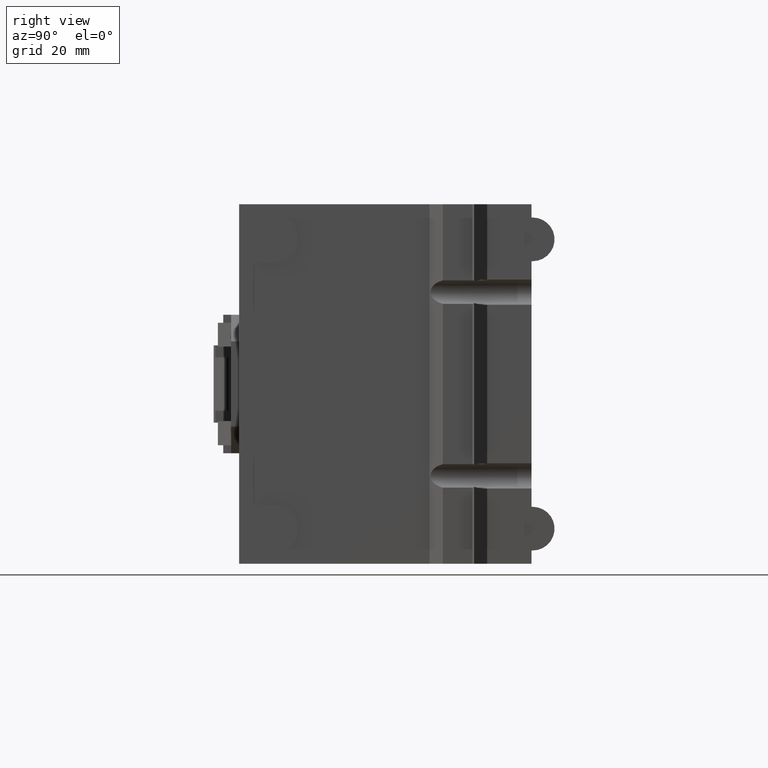
[diagram: clean part render]
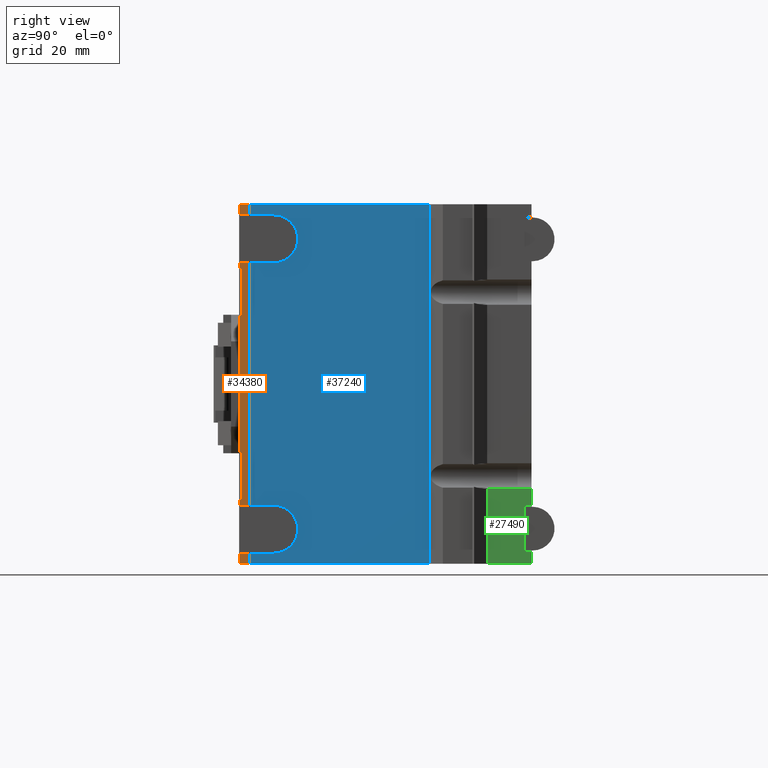
[diagram: same view with three faces highlighted in distinct colors, each labeled with its STEP entity id]
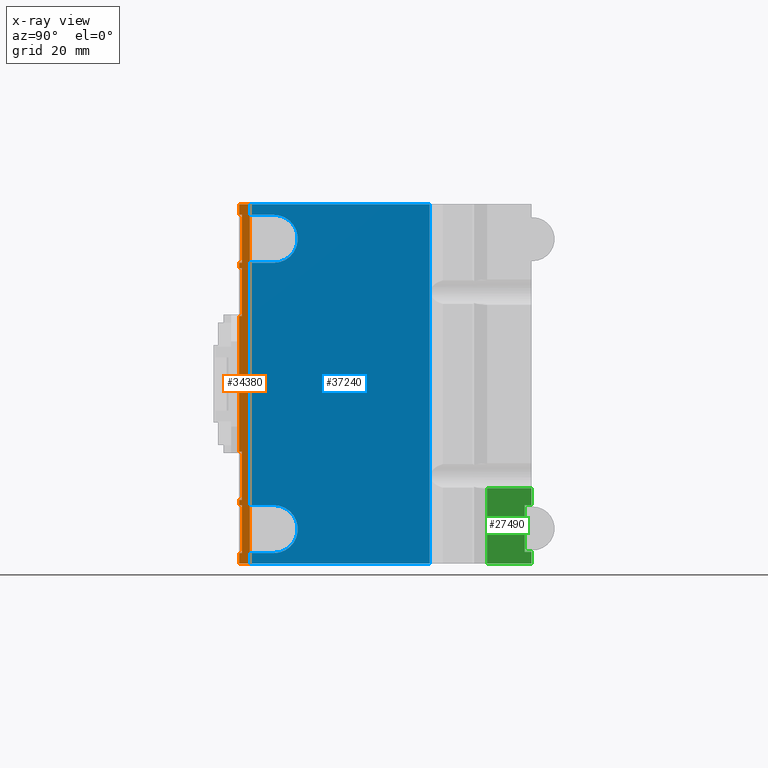
[diagram: x-ray of the same camera — body ghosted, the three highlighted faces saturated]
A machine part, right view with three faces highlighted in distinct colors.
The next image is the same camera in x-ray (body ghosted, the three faces saturated) — at least one of them is partly hidden behind the body in this view.
Their STEP definitions:

[orange] entity #34380 — the highlighted planar face has unit normal (1, 0, 0).
#12280=CARTESIAN_POINT('',(-42.5,0.,-152.));
#12290=DIRECTION('',(0.,1.,0.));
#12300=VECTOR('',#12290,1.);
#12310=LINE('',#12280,#12300);
#12320=CARTESIAN_POINT('',(-42.5,-1.,-152.));
#12330=VERTEX_POINT('',#12320);
#12340=CARTESIAN_POINT('',(-42.5,3.,-152.));
#12350=VERTEX_POINT('',#12340);
#12360=EDGE_CURVE('',#12330,#12350,#12310,.T.);
#21310=CARTESIAN_POINT('',(92.5,3.,-152.));
#21320=VERTEX_POINT('',#21310);
#21350=CARTESIAN_POINT('',(92.5,0.,-152.));
#21360=DIRECTION('',(0.,-1.,0.));
#21370=VECTOR('',#21360,1.);
#21380=LINE('',#21350,#21370);
#21390=CARTESIAN_POINT('',(92.5,-1.,-152.));
#21400=VERTEX_POINT('',#21390);
#21410=EDGE_CURVE('',#21320,#21400,#21380,.T.);
#32970=CARTESIAN_POINT('',(-42.5,3.,-152.));
#32980=DIRECTION('',(0.,0.,-1.));
#32990=DIRECTION('',(0.,1.,0.));
#33000=AXIS2_PLACEMENT_3D('',#32970,#32980,#32990);
#33010=PLANE('',#33000);
#33020=CARTESIAN_POINT('',(70.5,0.,-152.));
#33030=DIRECTION('',(0.,1.,0.));
#33040=VECTOR('',#33030,1.);
#33050=LINE('',#33020,#33040);
#33060=CARTESIAN_POINT('',(70.5,-1.,-152.));
#33070=VERTEX_POINT('',#33060);
#33080=CARTESIAN_POINT('',(70.5,0.,-152.));
#33090=VERTEX_POINT('',#33080);
#33100=EDGE_CURVE('',#33070,#33090,#33050,.T.);
#33110=ORIENTED_EDGE('',*,*,#33100,.F.);
#33120=CARTESIAN_POINT('',(50.,0.,-152.));
#33130=DIRECTION('',(1.,0.,0.));
#33140=VECTOR('',#33130,1.);
#33150=LINE('',#33120,#33140);
#33160=CARTESIAN_POINT('',(88.5,0.,-152.));
#33170=VERTEX_POINT('',#33160);
#33180=EDGE_CURVE('',#33090,#33170,#33150,.T.);
#33190=ORIENTED_EDGE('',*,*,#33180,.F.);
#33200=CARTESIAN_POINT('',(88.5,0.,-152.));
#33210=DIRECTION('',(0.,-1.,0.));
#33220=VECTOR('',#33210,1.);
#33230=LINE('',#33200,#33220);
#33240=CARTESIAN_POINT('',(88.5,-1.,-152.));
#33250=VERTEX_POINT('',#33240);
#33260=EDGE_CURVE('',#33170,#33250,#33230,.T.);
#33270=ORIENTED_EDGE('',*,*,#33260,.F.);
#33280=CARTESIAN_POINT('',(50.,-1.,-152.));
#33290=DIRECTION('',(1.,0.,0.));
#33300=VECTOR('',#33290,1.);
#33310=LINE('',#33280,#33300);
#33320=EDGE_CURVE('',#33250,#21400,#33310,.T.);
#33330=ORIENTED_EDGE('',*,*,#33320,.F.);
#33340=ORIENTED_EDGE('',*,*,#21410,.T.);
#33350=CARTESIAN_POINT('',(50.,3.,-152.));
#33360=DIRECTION('',(1.,0.,0.));
#33370=VECTOR('',#33360,1.);
#33380=LINE('',#33350,#33370);
#33390=EDGE_CURVE('',#12350,#21320,#33380,.T.);
#33400=ORIENTED_EDGE('',*,*,#33390,.T.);
#33410=ORIENTED_EDGE('',*,*,#12360,.T.);
#33420=CARTESIAN_POINT('',(0.,-1.,-152.));
#33430=DIRECTION('',(1.,0.,0.));
#33440=VECTOR('',#33430,1.);
#33450=LINE('',#33420,#33440);
#33460=CARTESIAN_POINT('',(-38.5,-1.,-152.));
#33470=VERTEX_POINT('',#33460);
#33480=EDGE_CURVE('',#12330,#33470,#33450,.T.);
#33490=ORIENTED_EDGE('',*,*,#33480,.F.);
#33500=CARTESIAN_POINT('',(-38.5,0.,-152.));
#33510=DIRECTION('',(0.,1.,0.));
#33520=VECTOR('',#33510,1.);
#33530=LINE('',#33500,#33520);
#33540=CARTESIAN_POINT('',(-38.5,0.,-152.));
#33550=VERTEX_POINT('',#33540);
#33560=EDGE_CURVE('',#33470,#33550,#33530,.T.);
#33570=ORIENTED_EDGE('',*,*,#33560,.F.);
#33580=CARTESIAN_POINT('',(0.,0.,-152.));
#33590=DIRECTION('',(1.,0.,0.));
#33600=VECTOR('',#33590,1.);
#33610=LINE('',#33580,#33600);
#33620=CARTESIAN_POINT('',(-20.5,0.,-152.));
#33630=VERTEX_POINT('',#33620);
#33640=EDGE_CURVE('',#33550,#33630,#33610,.T.);
#33650=ORIENTED_EDGE('',*,*,#33640,.F.);
#33660=CARTESIAN_POINT('',(-20.5,0.,-152.));
#33670=DIRECTION('',(0.,-1.,0.));
#33680=VECTOR('',#33670,1.);
#33690=LINE('',#33660,#33680);
#33700=CARTESIAN_POINT('',(-20.5,-1.,-152.));
#33710=VERTEX_POINT('',#33700);
#33720=EDGE_CURVE('',#33630,#33710,#33690,.T.);
#33730=ORIENTED_EDGE('',*,*,#33720,.F.);
#33740=CARTESIAN_POINT('',(0.,-1.,-152.));
#33750=DIRECTION('',(1.,0.,0.));
#33760=VECTOR('',#33750,1.);
#33770=LINE('',#33740,#33760);
#33780=CARTESIAN_POINT('',(-18.5,-1.,-152.));
#33790=VERTEX_POINT('',#33780);
#33800=EDGE_CURVE('',#33710,#33790,#33770,.T.);
#33810=ORIENTED_EDGE('',*,*,#33800,.F.);
#33820=CARTESIAN_POINT('',(-18.5,0.,-152.));
#33830=DIRECTION('',(0.,1.,0.));
#33840=VECTOR('',#33830,1.);
#33850=LINE('',#33820,#33840);
#33860=CARTESIAN_POINT('',(-18.5,0.,-152.));
#33870=VERTEX_POINT('',#33860);
#33880=EDGE_CURVE('',#33790,#33870,#33850,.T.);
#33890=ORIENTED_EDGE('',*,*,#33880,.F.);
#33900=CARTESIAN_POINT('',(0.,0.,-152.));
#33910=DIRECTION('',(1.,-0.,0.));
#33920=VECTOR('',#33910,1.);
#33930=LINE('',#33900,#33920);
#33940=CARTESIAN_POINT('',(-0.499999999999986,0.,-152.));
#33950=VERTEX_POINT('',#33940);
#33960=EDGE_CURVE('',#33870,#33950,#33930,.T.);
#33970=ORIENTED_EDGE('',*,*,#33960,.F.);
#33980=CARTESIAN_POINT('',(-0.499999999999986,0.,-152.));
#33990=DIRECTION('',(0.,-1.,0.));
#34000=VECTOR('',#33990,1.);
#34010=LINE('',#33980,#34000);
#34020=CARTESIAN_POINT('',(-0.499999999999986,-1.,-152.));
#34030=VERTEX_POINT('',#34020);
#34040=EDGE_CURVE('',#33950,#34030,#34010,.T.);
#34050=ORIENTED_EDGE('',*,*,#34040,.F.);
#34060=CARTESIAN_POINT('',(50.5,-1.,-152.));
#34070=VERTEX_POINT('',#34060);
#34080=EDGE_CURVE('',#34030,#34070,#33770,.T.);
#34090=ORIENTED_EDGE('',*,*,#34080,.F.);
#34100=CARTESIAN_POINT('',(50.5,0.,-152.));
#34110=DIRECTION('',(0.,1.,0.));
#34120=VECTOR('',#34110,1.);
#34130=LINE('',#34100,#34120);
#34140=CARTESIAN_POINT('',(50.5,0.,-152.));
#34150=VERTEX_POINT('',#34140);
#34160=EDGE_CURVE('',#34070,#34150,#34130,.T.);
#34170=ORIENTED_EDGE('',*,*,#34160,.F.);
#34180=CARTESIAN_POINT('',(0.,0.,-152.));
#34190=DIRECTION('',(1.,-0.,0.));
#34200=VECTOR('',#34190,1.);
#34210=LINE('',#34180,#34200);
#34220=CARTESIAN_POINT('',(68.5,0.,-152.));
#34230=VERTEX_POINT('',#34220);
#34240=EDGE_CURVE('',#34150,#34230,#34210,.T.);
#34250=ORIENTED_EDGE('',*,*,#34240,.F.);
#34260=CARTESIAN_POINT('',(68.5,0.,-152.));
#34270=DIRECTION('',(0.,-1.,0.));
#34280=VECTOR('',#34270,1.);
#34290=LINE('',#34260,#34280);
#34300=CARTESIAN_POINT('',(68.5,-1.,-152.));
#34310=VERTEX_POINT('',#34300);
#34320=EDGE_CURVE('',#34230,#34310,#34290,.T.);
#34330=ORIENTED_EDGE('',*,*,#34320,.F.);
#34340=EDGE_CURVE('',#34310,#33070,#33770,.T.);
#34350=ORIENTED_EDGE('',*,*,#34340,.F.);
#34360=EDGE_LOOP('',(#34350,#34330,#34250,#34170,#34090,#34050,#33970,
#33890,#33810,#33730,#33650,#33570,#33490,#33410,#33400,#33340,#33330,
#33270,#33190,#33110));
#34370=FACE_OUTER_BOUND('',#34360,.T.);
#34380=ADVANCED_FACE('',(#34370),#33010,.T.);

[blue] entity #37240 — the highlighted planar face has unit normal (1, 0, 0).
#12420=CARTESIAN_POINT('',(-42.5,3.,-154.));
#12430=VERTEX_POINT('',#12420);
#12460=CARTESIAN_POINT('',(-42.5,0.,-154.));
#12470=DIRECTION('',(0.,1.,0.));
#12480=VECTOR('',#12470,1.);
#12490=LINE('',#12460,#12480);
#12500=CARTESIAN_POINT('',(-42.5,70.4462134950067,-154.));
#12510=VERTEX_POINT('',#12500);
#12520=EDGE_CURVE('',#12430,#12510,#12490,.T.);
#21150=CARTESIAN_POINT('',(92.5,70.4462134950067,-154.));
#21160=VERTEX_POINT('',#21150);
#21190=CARTESIAN_POINT('',(92.5,0.,-154.));
#21200=DIRECTION('',(0.,-1.,0.));
#21210=VECTOR('',#21200,1.);
#21220=LINE('',#21190,#21210);
#21230=CARTESIAN_POINT('',(92.5,3.,-154.));
#21240=VERTEX_POINT('',#21230);
#21250=EDGE_CURVE('',#21160,#21240,#21220,.T.);
#32120=CARTESIAN_POINT('',(88.5,3.,-154.));
#32130=VERTEX_POINT('',#32120);
#32280=CARTESIAN_POINT('',(70.5,3.,-154.));
#32290=VERTEX_POINT('',#32280);
#32570=CARTESIAN_POINT('',(88.5,12.,-154.));
#32580=VERTEX_POINT('',#32570);
#32630=CARTESIAN_POINT('',(79.5,12.,-154.));
#32640=DIRECTION('',(0.,0.,-1.));
#32650=DIRECTION('',(-1.,0.,0.));
#32660=AXIS2_PLACEMENT_3D('',#32630,#32640,#32650);
#32670=CIRCLE('',#32660,9.);
#32680=CARTESIAN_POINT('',(70.5,12.,-154.));
#32690=VERTEX_POINT('',#32680);
#32700=EDGE_CURVE('',#32690,#32580,#32670,.T.);
#34600=CARTESIAN_POINT('',(70.5,0.,-154.));
#34610=DIRECTION('',(0.,1.,0.));
#34620=VECTOR('',#34610,1.);
#34630=LINE('',#34600,#34620);
#34640=EDGE_CURVE('',#32290,#32690,#34630,.T.);
#35180=CARTESIAN_POINT('',(-20.5,3.,-154.));
#35190=VERTEX_POINT('',#35180);
#35220=CARTESIAN_POINT('',(-20.5,0.,-154.));
#35230=DIRECTION('',(0.,-1.,0.));
#35240=VECTOR('',#35230,1.);
#35250=LINE('',#35220,#35240);
#35260=CARTESIAN_POINT('',(-20.5,12.,-154.));
#35270=VERTEX_POINT('',#35260);
#35280=EDGE_CURVE('',#35270,#35190,#35250,.T.);
#36190=CARTESIAN_POINT('',(-38.5,12.,-154.));
#36200=VERTEX_POINT('',#36190);
#36230=CARTESIAN_POINT('',(-38.5,0.,-154.));
#36240=DIRECTION('',(0.,1.,0.));
#36250=VECTOR('',#36240,1.);
#36260=LINE('',#36230,#36250);
#36270=CARTESIAN_POINT('',(-38.5,3.,-154.));
#36280=VERTEX_POINT('',#36270);
#36290=EDGE_CURVE('',#36280,#36200,#36260,.T.);
#36550=CARTESIAN_POINT('',(-42.5,70.0999999999999,-154.));
#36560=DIRECTION('',(0.,0.,-1.));
#36570=DIRECTION('',(0.,1.,0.));
#36580=AXIS2_PLACEMENT_3D('',#36550,#36560,#36570);
#36590=PLANE('',#36580);
#36790=CARTESIAN_POINT('',(0.,3.,-154.));
#36800=DIRECTION('',(1.,0.,0.));
#36810=VECTOR('',#36800,1.);
#36820=LINE('',#36790,#36810);
#36830=EDGE_CURVE('',#12430,#36280,#36820,.T.);
#36840=ORIENTED_EDGE('',*,*,#36830,.F.);
#36850=ORIENTED_EDGE('',*,*,#36290,.F.);
#36860=CARTESIAN_POINT('',(-29.5,12.,-154.));
#36870=DIRECTION('',(0.,0.,-1.));
#36880=DIRECTION('',(-1.,0.,0.));
#36890=AXIS2_PLACEMENT_3D('',#36860,#36870,#36880);
#36900=CIRCLE('',#36890,9.);
#36910=EDGE_CURVE('',#36200,#35270,#36900,.T.);
#36920=ORIENTED_EDGE('',*,*,#36910,.F.);
#36930=ORIENTED_EDGE('',*,*,#35280,.F.);
#36940=CARTESIAN_POINT('',(0.,3.,-154.));
#36950=DIRECTION('',(1.,0.,0.));
#36960=VECTOR('',#36950,1.);
#36970=LINE('',#36940,#36960);
#36980=EDGE_CURVE('',#35190,#32290,#36970,.T.);
#36990=ORIENTED_EDGE('',*,*,#36980,.F.);
#37000=ORIENTED_EDGE('',*,*,#34640,.F.);
#37010=ORIENTED_EDGE('',*,*,#32700,.F.);
#37020=CARTESIAN_POINT('',(88.5,0.,-154.));
#37030=DIRECTION('',(0.,-1.,0.));
#37040=VECTOR('',#37030,1.);
#37050=LINE('',#37020,#37040);
#37060=EDGE_CURVE('',#32580,#32130,#37050,.T.);
#37070=ORIENTED_EDGE('',*,*,#37060,.F.);
#37080=CARTESIAN_POINT('',(50.,3.,-154.));
#37090=DIRECTION('',(1.,0.,0.));
#37100=VECTOR('',#37090,1.);
#37110=LINE('',#37080,#37100);
#37120=EDGE_CURVE('',#32130,#21240,#37110,.T.);
#37130=ORIENTED_EDGE('',*,*,#37120,.F.);
#37140=ORIENTED_EDGE('',*,*,#21250,.T.);
#37150=CARTESIAN_POINT('',(0.,70.4462134950067,-154.));
#37160=DIRECTION('',(-1.,0.,0.));
#37170=VECTOR('',#37160,1.);
#37180=LINE('',#37150,#37170);
#37190=EDGE_CURVE('',#21160,#12510,#37180,.T.);
#37200=ORIENTED_EDGE('',*,*,#37190,.F.);
#37210=ORIENTED_EDGE('',*,*,#12520,.T.);
#37220=EDGE_LOOP('',(#37210,#37200,#37140,#37130,#37070,#37010,#37000,
#36990,#36930,#36920,#36850,#36840));
#37230=FACE_OUTER_BOUND('',#37220,.T.);
#37240=ADVANCED_FACE('',(#37230),#36590,.T.);

[green] entity #27490 — the highlighted planar face has unit normal (-1, 0, 0).
#12980=CARTESIAN_POINT('',(-42.5,92.084936490486,-158.55));
#12990=VERTEX_POINT('',#12980);
#13020=CARTESIAN_POINT('',(-42.5,108.75,-158.55));
#13030=DIRECTION('',(0.,-1.,0.));
#13040=VECTOR('',#13030,1.);
#13050=LINE('',#13020,#13040);
#13060=CARTESIAN_POINT('',(-42.5,108.75,-158.55));
#13070=VERTEX_POINT('',#13060);
#13080=EDGE_CURVE('',#13070,#12990,#13050,.T.);
#17950=CARTESIAN_POINT('',(0.,108.75,-158.55));
#17960=DIRECTION('',(-1.,0.,0.));
#17970=VECTOR('',#17960,1.);
#17980=LINE('',#17950,#17970);
#17990=CARTESIAN_POINT('',(-38.,108.75,-158.55));
#18000=VERTEX_POINT('',#17990);
#18010=EDGE_CURVE('',#18000,#13070,#17980,.T.);
#18420=CARTESIAN_POINT('',(-20.5,108.75,-158.55));
#18430=VERTEX_POINT('',#18420);
#18460=CARTESIAN_POINT('',(50.,108.75,-158.55));
#18470=DIRECTION('',(-1.,0.,0.));
#18480=VECTOR('',#18470,1.);
#18490=LINE('',#18460,#18480);
#18500=CARTESIAN_POINT('',(-14.2286361670147,108.75,-158.55));
#18510=VERTEX_POINT('',#18500);
#18520=EDGE_CURVE('',#18510,#18430,#18490,.T.);
#26590=CARTESIAN_POINT('',(-38.,108.75,-158.55));
#26600=DIRECTION('',(0.,-1.,0.));
#26610=VECTOR('',#26600,1.);
#26620=LINE('',#26590,#26610);
#26630=CARTESIAN_POINT('',(-38.,106.15,-158.55));
#26640=VERTEX_POINT('',#26630);
#26650=EDGE_CURVE('',#18000,#26640,#26620,.T.);
#27000=CARTESIAN_POINT('',(0.,106.15,-158.55));
#27010=DIRECTION('',(-1.,0.,0.));
#27020=VECTOR('',#27010,1.);
#27030=LINE('',#27000,#27020);
#27040=CARTESIAN_POINT('',(-20.5,106.15,-158.55));
#27050=VERTEX_POINT('',#27040);
#27060=EDGE_CURVE('',#27050,#26640,#27030,.T.);
#27170=CARTESIAN_POINT('',(7.5,108.75,-158.55));
#27180=DIRECTION('',(0.,0.,1.));
#27190=DIRECTION('',(-1.,0.,0.));
#27200=AXIS2_PLACEMENT_3D('',#27170,#27180,#27190);
#27210=PLANE('',#27200);
#27220=CARTESIAN_POINT('',(-20.5,108.75,-158.55));
#27230=DIRECTION('',(0.,-1.,0.));
#27240=VECTOR('',#27230,1.);
#27250=LINE('',#27220,#27240);
#27260=EDGE_CURVE('',#18430,#27050,#27250,.T.);
#27270=ORIENTED_EDGE('',*,*,#27260,.F.);
#27280=ORIENTED_EDGE('',*,*,#27060,.F.);
#27290=ORIENTED_EDGE('',*,*,#26650,.T.);
#27300=ORIENTED_EDGE('',*,*,#18010,.F.);
#27310=ORIENTED_EDGE('',*,*,#13080,.F.);
#27320=CARTESIAN_POINT('',(0.,92.084936490486,-158.55));
#27330=DIRECTION('',(1.,0.,0.));
#27340=VECTOR('',#27330,1.);
#27350=LINE('',#27320,#27340);
#27360=CARTESIAN_POINT('',(-14.2286361670147,92.084936490486,-158.55));
#27370=VERTEX_POINT('',#27360);
#27380=EDGE_CURVE('',#12990,#27370,#27350,.T.);
#27390=ORIENTED_EDGE('',*,*,#27380,.F.);
#27400=CARTESIAN_POINT('',(-14.2286361670147,-23.43060520995,-158.55));
#27410=DIRECTION('',(0.,1.,0.));
#27420=VECTOR('',#27410,1.);
#27430=LINE('',#27400,#27420);
#27440=EDGE_CURVE('',#27370,#18510,#27430,.T.);
#27450=ORIENTED_EDGE('',*,*,#27440,.F.);
#27460=ORIENTED_EDGE('',*,*,#18520,.F.);
#27470=EDGE_LOOP('',(#27460,#27450,#27390,#27310,#27300,#27290,#27280,
#27270));
#27480=FACE_OUTER_BOUND('',#27470,.T.);
#27490=ADVANCED_FACE('',(#27480),#27210,.F.);